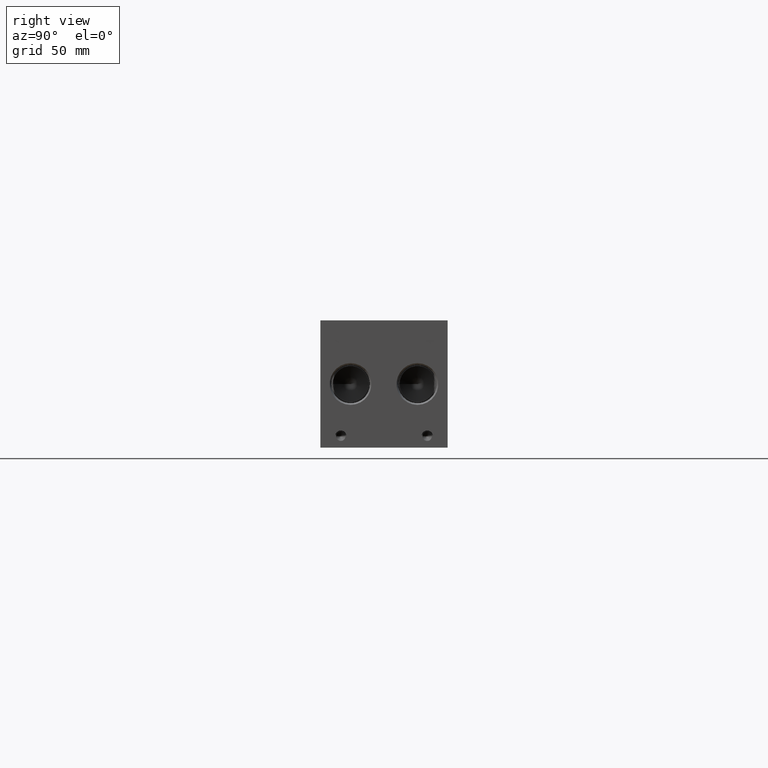
[diagram: clean part render]
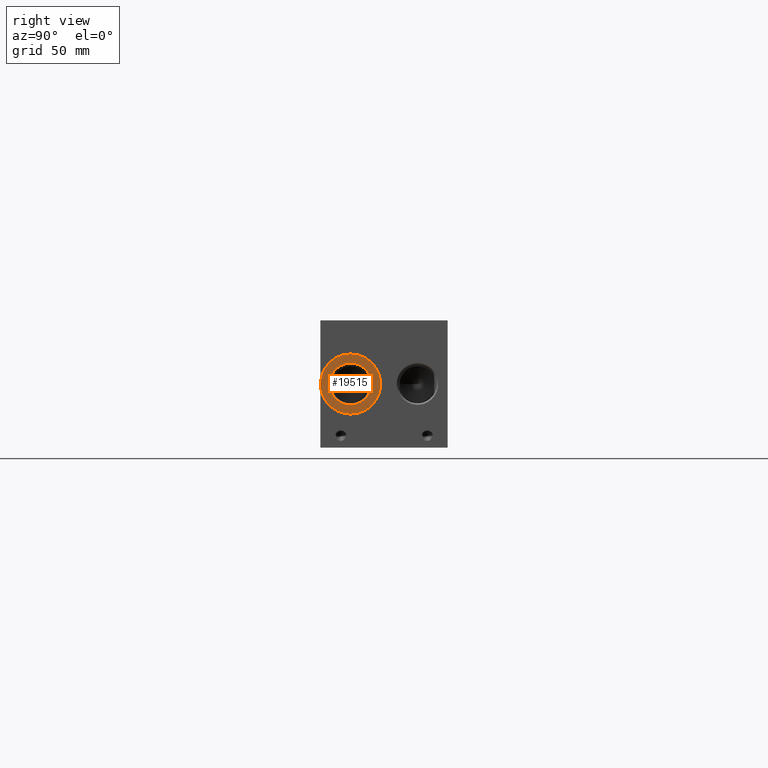
[diagram: same view with one face highlighted and labeled with its STEP entity id]
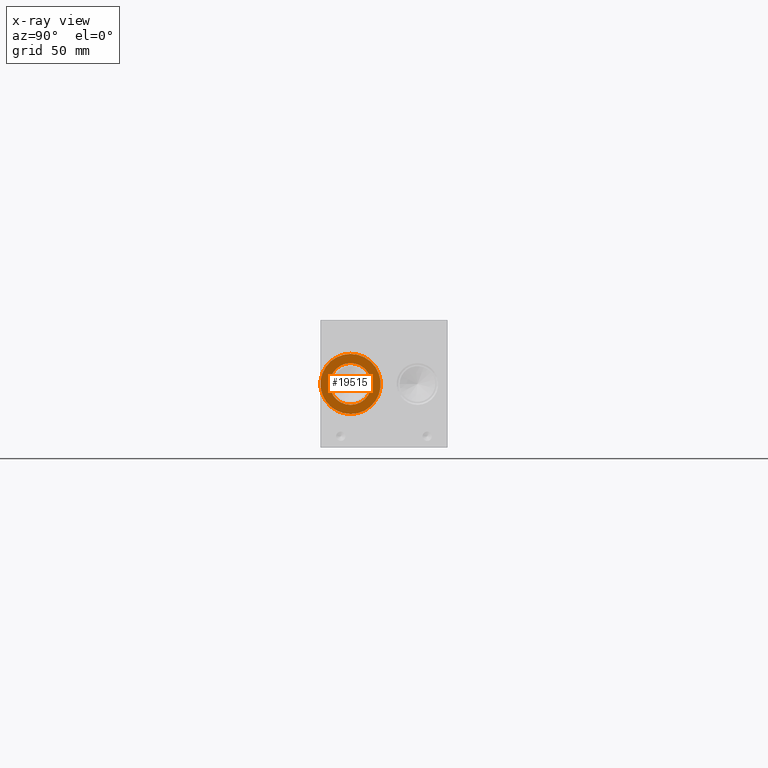
[diagram: x-ray of the same camera — body ghosted, the highlighted face saturated]
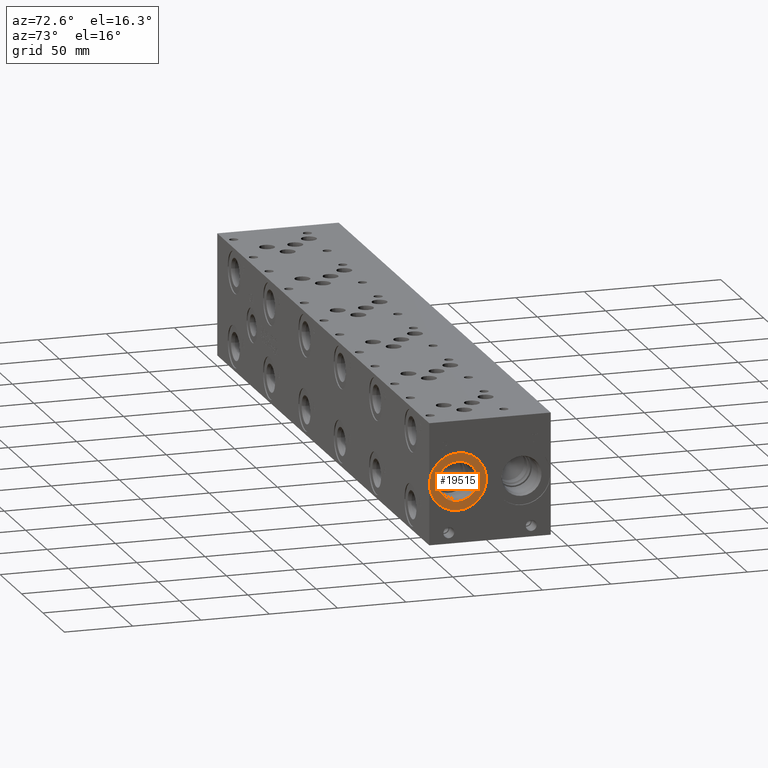
[diagram: same view with one face highlighted and labeled with its STEP entity id]
A machine part, right view. The second image highlights one B-rep face of the part: STEP entity #19515.
The next image is the same camera in x-ray: the body ghosted, the highlighted face saturated — about 0% of this face is hidden behind the body in this view.
A second angle (auxiliary view) of the same face is appended — the face is thin or edge-on in the first view.
In plain terms, the highlighted planar face has unit normal (-1, 0, 0).
Its self-contained STEP definition (entity closure, byte-faithful):
#406=CIRCLE('',#20418,21.0185);
#407=CIRCLE('',#20419,21.0185);
#408=CIRCLE('',#20421,14.5923);
#409=CIRCLE('',#20422,14.5923);
#1048=FACE_BOUND('',#3726,.T.);
#2594=FACE_OUTER_BOUND('',#3725,.T.);
#3725=EDGE_LOOP('',(#15964,#15965));
#3726=EDGE_LOOP('',(#15966,#15967));
#8751=VERTEX_POINT('',#32965);
#8752=VERTEX_POINT('',#32967);
#8753=VERTEX_POINT('',#32971);
#8754=VERTEX_POINT('',#32972);
#11314=EDGE_CURVE('',#8751,#8752,#406,.T.);
#11315=EDGE_CURVE('',#8752,#8751,#407,.T.);
#11316=EDGE_CURVE('',#8753,#8754,#408,.T.);
#11317=EDGE_CURVE('',#8754,#8753,#409,.T.);
#15964=ORIENTED_EDGE('',*,*,#11315,.F.);
#15965=ORIENTED_EDGE('',*,*,#11314,.F.);
#15966=ORIENTED_EDGE('',*,*,#11316,.T.);
#15967=ORIENTED_EDGE('',*,*,#11317,.T.);
#18103=PLANE('',#20420);
#19515=ADVANCED_FACE('',(#2594,#1048),#18103,.F.);
#20418=AXIS2_PLACEMENT_3D('',#32968,#23773,#23774);
#20419=AXIS2_PLACEMENT_3D('',#32969,#23775,#23776);
#20420=AXIS2_PLACEMENT_3D('',#32970,#23777,#23778);
#20421=AXIS2_PLACEMENT_3D('',#32973,#23779,#23780);
#20422=AXIS2_PLACEMENT_3D('',#32974,#23781,#23782);
#23773=DIRECTION('center_axis',(-1.,0.,0.));
#23774=DIRECTION('ref_axis',(0.,0.,1.));
#23775=DIRECTION('center_axis',(-1.,0.,0.));
#23776=DIRECTION('ref_axis',(0.,0.,1.));
#23777=DIRECTION('center_axis',(-1.,0.,0.));
#23778=DIRECTION('ref_axis',(0.,0.,1.));
#23779=DIRECTION('center_axis',(-1.,0.,0.));
#23780=DIRECTION('ref_axis',(0.,0.,1.));
#23781=DIRECTION('center_axis',(-1.,0.,0.));
#23782=DIRECTION('ref_axis',(0.,0.,1.));
#32965=CARTESIAN_POINT('',(494.5126,21.082,65.4685));
#32967=CARTESIAN_POINT('',(494.5126,21.082,23.4315));
#32968=CARTESIAN_POINT('Origin',(494.5126,21.082,44.45));
#32969=CARTESIAN_POINT('Origin',(494.5126,21.082,44.45));
#32970=CARTESIAN_POINT('Origin',(494.5126,21.082,29.8577));
#32971=CARTESIAN_POINT('',(494.5126,21.082,29.8577));
#32972=CARTESIAN_POINT('',(494.5126,21.082,59.0423));
#32973=CARTESIAN_POINT('Origin',(494.5126,21.082,44.45));
#32974=CARTESIAN_POINT('Origin',(494.5126,21.082,44.45));